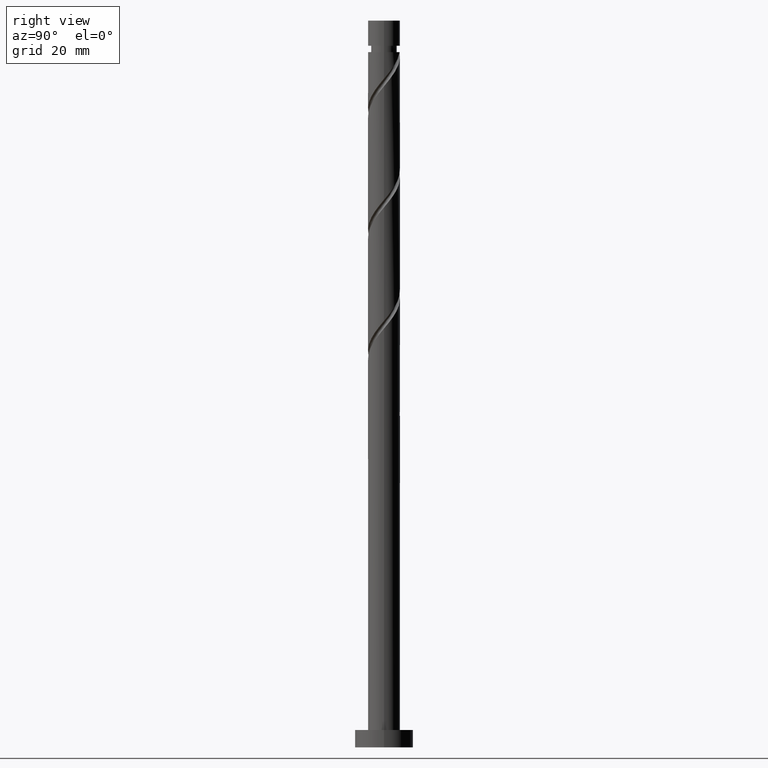
[diagram: clean part render]
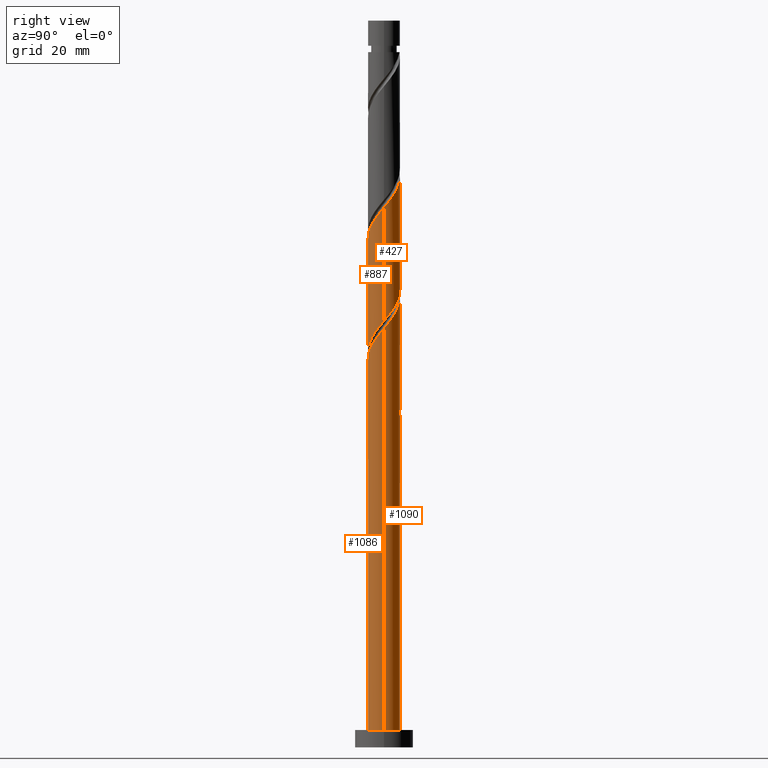
[diagram: same view with one multi-face feature highlighted, each face labeled with its STEP entity id]
A machine part, right view. The highlighted faces form ONE feature: a constant-radius fillet chain: 4 tangent blend faces with common blend radius 2.75 mm. The faces share edges in the B-rep.
Their STEP definitions:
[1] entity #1086 (Cylinder):
#8 = DIRECTION ( 'NONE',  ( -1.000000000000000000, 0.000000000000000000, 0.000000000000000000 ) ) ;
#12 = LINE ( 'NONE', #1559, #48 ) ;
#23 = CARTESIAN_POINT ( 'NONE',  ( -0.7450804091537110985, -2.682734662216110344, 65.92222105348547245 ) ) ;
#46 = CARTESIAN_POINT ( 'NONE',  ( -2.750000000000003997, -3.658317079102196995E-15, 61.61158527868187207 ) ) ;
#48 = VECTOR ( 'NONE', #971, 1000.000000000000000 ) ;
#55 = CARTESIAN_POINT ( 'NONE',  ( -2.750000000000003997, -3.658317079102196995E-15, 61.61158527868187207 ) ) ;
#62 = DIRECTION ( 'NONE',  ( -0.000000000000000000, -0.000000000000000000, -1.000000000000000000 ) ) ;
#66 = CARTESIAN_POINT ( 'NONE',  ( 2.750000000000000000, 3.367778697655220519E-16, 3.000000000000000000 ) ) ;
#73 = CARTESIAN_POINT ( 'NONE',  ( 1.353259906971121307, -2.393989896424906672, 68.52638772015214386 ) ) ;
#112 = CARTESIAN_POINT ( 'NONE',  ( 0.000000000000000000, 0.000000000000000000, 125.0000000000000000 ) ) ;
#143 = ORIENTED_EDGE ( 'NONE', *, *, #507, .F. ) ;
#170 = VERTEX_POINT ( 'NONE', #488 ) ;
#172 = CARTESIAN_POINT ( 'NONE',  ( -2.179654583445650218, -1.732430656858974904, 63.83888772015214386 ) ) ;
#211 = ORIENTED_EDGE ( 'NONE', *, *, #273, .F. ) ;
#230 = AXIS2_PLACEMENT_3D ( 'NONE', #112, #740, #8 ) ;
#255 = VERTEX_POINT ( 'NONE', #727 ) ;
#273 = EDGE_CURVE ( 'NONE', #255, #532, #12, .T. ) ;
#301 = LINE ( 'NONE', #1292, #870 ) ;
#328 = CARTESIAN_POINT ( 'NONE',  ( 2.501962217801642741, -1.141352294733360084, 70.60972105348548666 ) ) ;
#331 = AXIS2_PLACEMENT_3D ( 'NONE', #745, #499, #981 ) ;
#383 = EDGE_CURVE ( 'NONE', #170, #532, #768, .T. ) ;
#438 = CARTESIAN_POINT ( 'NONE',  ( 0.1203970237340162008, -2.781674790595845437, 66.96388772015212965 ) ) ;
#488 = CARTESIAN_POINT ( 'NONE',  ( -2.750000000000000000, 0.000000000000000000, 3.000000000000000000 ) ) ;
#499 = DIRECTION ( 'NONE',  ( 0.000000000000000000, 0.000000000000000000, 1.000000000000000000 ) ) ;
#507 = EDGE_CURVE ( 'NONE', #910, #255, #1085, .T. ) ;
#520 = EDGE_LOOP ( 'NONE', ( #211, #143, #1514, #1330 ) ) ;
#532 = VERTEX_POINT ( 'NONE', #66 ) ;
#563 = CARTESIAN_POINT ( 'NONE',  ( 2.321189773387174693, -1.537624180313009070, 70.08888772015214386 ) ) ;
#668 = CARTESIAN_POINT ( 'NONE',  ( 0.5472430904086422743, -2.695000000000003393, 67.48472105348545824 ) ) ;
#727 = CARTESIAN_POINT ( 'NONE',  ( 2.750000000000003997, 3.268496406738847851E-15, 72.02825194534855768 ) ) ;
#740 = DIRECTION ( 'NONE',  ( -0.000000000000000000, -0.000000000000000000, -1.000000000000000000 ) ) ;
#745 = CARTESIAN_POINT ( 'NONE',  ( 0.000000000000000000, 0.000000000000000000, 3.000000000000000000 ) ) ;
#768 = CIRCLE ( 'NONE', #331, 2.750000000000000000 ) ;
#773 = CARTESIAN_POINT ( 'NONE',  ( -2.393989896424906227, -1.353259906971121307, 63.31805438681881526 ) ) ;
#787 = CARTESIAN_POINT ( 'NONE',  ( -0.3123416927098473517, -2.732204726405979223, 66.44305438681881526 ) ) ;
#806 = CARTESIAN_POINT ( 'NONE',  ( 2.732204726405979223, -0.3123416927098474072, 71.65138772015212965 ) ) ;
#814 = CARTESIAN_POINT ( 'NONE',  ( 2.750000000000004441, -0.1566777779776868662, 71.83874085614127125 ) ) ;
#843 = FACE_OUTER_BOUND ( 'NONE', #520, .T. ) ;
#870 = VECTOR ( 'NONE', #62, 1000.000000000000000 ) ;
#880 = CARTESIAN_POINT ( 'NONE',  ( -2.750000000000003109, -0.2763853991962862411, 61.94588985408970672 ) ) ;
#910 = VERTEX_POINT ( 'NONE', #55 ) ;
#971 = DIRECTION ( 'NONE',  ( -0.000000000000000000, -0.000000000000000000, -1.000000000000000000 ) ) ;
#981 = DIRECTION ( 'NONE',  ( 1.000000000000000000, 0.000000000000000000, 0.000000000000000000 ) ) ;
#994 = CARTESIAN_POINT ( 'NONE',  ( -1.858639381879330088, -2.026810215123074688, 64.35972105348547245 ) ) ;
#1049 = CARTESIAN_POINT ( 'NONE',  ( 2.682734662216110788, -0.7450804091537112095, 71.13055438681881526 ) ) ;
#1063 = CARTESIAN_POINT ( 'NONE',  ( 0.9740891570832681534, -2.608325209404161793, 68.00555438681881526 ) ) ;
#1085 =( BOUNDED_CURVE ( )  B_SPLINE_CURVE ( 2, ( #46, #880, #1366, #1228, #773, #172, #994, #1353, #1233, #23, #787, #438, #668, #1063, #73, #1421, #1544, #563, #328, #1049, #806, #814, #1394 ),
 .UNSPECIFIED., .F., .T. ) 
 B_SPLINE_CURVE_WITH_KNOTS ( ( 3, 2, 2, 2, 2, 2, 2, 2, 2, 2, 2, 3 ),
 ( 0.05453220231385526307, 0.06250000000000000000, 0.07499999999999995559, 0.08750000000000002220, 0.09999999999999997780, 0.1125000000000000444, 0.1250000000000000000, 0.1374999999999999556, 0.1500000000000000222, 0.1624999999999999778, 0.1750000000000000444, 0.1795322023138553047 ),
 .UNSPECIFIED. ) 
 CURVE ( )  GEOMETRIC_REPRESENTATION_ITEM ( )  RATIONAL_B_SPLINE_CURVE ( ( 0.9039174447099398435, 0.9019565955404693636, 0.9090909090909177204, 0.8978984914501337844, 0.9090909090909177204, 0.8978984914501337844, 0.9090909090909177204, 0.8978984914501337844, 0.9090909090909177204, 0.8978984914501337844, 0.9090909090909177204, 0.8978984914501337844, 0.9090909090909177204, 0.8978984914501337844, 0.9090909090909177204, 0.8978984914501337844, 0.9090909090909177204, 0.8978984914501337844, 0.9090909090909177204, 0.8978984914501337844, 0.9090909090909177204, 0.9050328050005820302, 0.9039174447099398435 ) ) 
 REPRESENTATION_ITEM ( '' )  );
#1086 = ADVANCED_FACE ( 'NONE', ( #843 ), #1098, .T. ) ;
#1098 = CYLINDRICAL_SURFACE ( 'NONE', #230, 2.750000000000000000 ) ;
#1228 = CARTESIAN_POINT ( 'NONE',  ( -2.608325209404161349, -0.9740891570832682644, 62.79722105348547956 ) ) ;
#1233 = CARTESIAN_POINT ( 'NONE',  ( -1.141352294733360084, -2.501962217801642741, 65.40138772015215807 ) ) ;
#1292 = CARTESIAN_POINT ( 'NONE',  ( -2.750000000000000000, 0.000000000000000000, 125.0000000000000000 ) ) ;
#1330 = ORIENTED_EDGE ( 'NONE', *, *, #383, .T. ) ;
#1353 = CARTESIAN_POINT ( 'NONE',  ( -1.537624180313008848, -2.321189773387173805, 64.88055438681880105 ) ) ;
#1366 = CARTESIAN_POINT ( 'NONE',  ( -2.695000000000003393, -0.5472430904086422743, 62.27638772015214386 ) ) ;
#1386 = EDGE_CURVE ( 'NONE', #910, #170, #301, .T. ) ;
#1394 = CARTESIAN_POINT ( 'NONE',  ( 2.750000000000003997, 3.268496406738847851E-15, 72.02825194534855768 ) ) ;
#1421 = CARTESIAN_POINT ( 'NONE',  ( 1.732430656858974682, -2.179654583445650218, 69.04722105348547245 ) ) ;
#1514 = ORIENTED_EDGE ( 'NONE', *, *, #1386, .T. ) ;
#1544 = CARTESIAN_POINT ( 'NONE',  ( 2.026810215123074688, -1.858639381879330088, 69.56805438681880105 ) ) ;
#1559 = CARTESIAN_POINT ( 'NONE',  ( 2.750000000000000000, 3.367778697655220519E-16, 125.0000000000000000 ) ) ;
[2] entity #1090 (Cylinder):
#12 = LINE ( 'NONE', #1559, #48 ) ;
#39 = CARTESIAN_POINT ( 'NONE',  ( -0.5472430904086419412, 2.695000000000003393, 77.90138772015214386 ) ) ;
#48 = VECTOR ( 'NONE', #971, 1000.000000000000000 ) ;
#53 = CARTESIAN_POINT ( 'NONE',  ( -0.5472430904086418302, 2.695000000000002949, 57.06805438681880815 ) ) ;
#55 = CARTESIAN_POINT ( 'NONE',  ( -2.750000000000003997, -3.658317079102196995E-15, 61.61158527868187207 ) ) ;
#62 = DIRECTION ( 'NONE',  ( -0.000000000000000000, -0.000000000000000000, -1.000000000000000000 ) ) ;
#66 = CARTESIAN_POINT ( 'NONE',  ( 2.750000000000000000, 3.367778697655220519E-16, 3.000000000000000000 ) ) ;
#86 = CARTESIAN_POINT ( 'NONE',  ( -2.750000000000002220, 0.2763853991962786361, 62.60688558621460231 ) ) ;
#104 = CYLINDRICAL_SURFACE ( 'NONE', #1024, 2.750000000000000000 ) ;
#139 = CARTESIAN_POINT ( 'NONE',  ( -2.501962217801642741, 1.141352294733359862, 81.02638772015211543 ) ) ;
#145 = ORIENTED_EDGE ( 'NONE', *, *, #433, .F. ) ;
#155 = ORIENTED_EDGE ( 'NONE', *, *, #273, .T. ) ;
#156 = CARTESIAN_POINT ( 'NONE',  ( -2.750000000000004441, 0.1566777779776865609, 82.25540752280791423 ) ) ;
#170 = VERTEX_POINT ( 'NONE', #488 ) ;
#246 = ORIENTED_EDGE ( 'NONE', *, *, #811, .F. ) ;
#255 = VERTEX_POINT ( 'NONE', #727 ) ;
#268 = EDGE_LOOP ( 'NONE', ( #145, #155, #925, #483, #280, #313, #360, #246 ) ) ;
#273 = EDGE_CURVE ( 'NONE', #255, #532, #12, .T. ) ;
#280 = ORIENTED_EDGE ( 'NONE', *, *, #838, .F. ) ;
#283 = CARTESIAN_POINT ( 'NONE',  ( 0.5472430904086428294, 2.694999999999999840, 57.06805438681880815 ) ) ;
#290 = CARTESIAN_POINT ( 'NONE',  ( 2.750000000000003109, 0.2763853991962873513, 72.36255652075638523 ) ) ;
#301 = LINE ( 'NONE', #1292, #870 ) ;
#303 = CARTESIAN_POINT ( 'NONE',  ( -2.321189773387174693, 1.537624180313008848, 59.67222105348546535 ) ) ;
#310 = CARTESIAN_POINT ( 'NONE',  ( -1.141352294733357642, 2.501962217801639632, 59.15138772015214386 ) ) ;
#313 = ORIENTED_EDGE ( 'NONE', *, *, #376, .T. ) ;
#318 = CARTESIAN_POINT ( 'NONE',  ( 0.5472430904086428294, 2.694999999999999840, 57.06805438681880815 ) ) ;
#345 = VERTEX_POINT ( 'NONE', #369 ) ;
#360 = ORIENTED_EDGE ( 'NONE', *, *, #1378, .F. ) ;
#369 = CARTESIAN_POINT ( 'NONE',  ( -2.750000000000000888, -3.283489509522074659E-15, 62.94119016162242986 ) ) ;
#373 = DIRECTION ( 'NONE',  ( -1.000000000000000000, 0.000000000000000000, 0.000000000000000000 ) ) ;
#376 = EDGE_CURVE ( 'NONE', #1390, #458, #440, .T. ) ;
#392 = CARTESIAN_POINT ( 'NONE',  ( 2.179654583445651106, 1.732430656858974682, 74.25555438681880105 ) ) ;
#404 = CARTESIAN_POINT ( 'NONE',  ( -1.353259906971121529, 2.393989896424906227, 78.94305438681880105 ) ) ;
#421 = CARTESIAN_POINT ( 'NONE',  ( -2.682734662216110344, 0.7450804091537110985, 81.54722105348545824 ) ) ;
#433 = EDGE_CURVE ( 'NONE', #255, #1460, #447, .T. ) ;
#440 = CIRCLE ( 'NONE', #973, 2.750000000000000000 ) ;
#447 =( BOUNDED_CURVE ( )  B_SPLINE_CURVE ( 2, ( #1011, #290, #1491, #1239, #624, #392, #897, #757, #780, #1135, #1358, #641, #39, #518, #404, #1506, #534, #632, #139, #421, #655, #156, #1002 ),
 .UNSPECIFIED., .F., .T. ) 
 B_SPLINE_CURVE_WITH_KNOTS ( ( 3, 2, 2, 2, 2, 2, 2, 2, 2, 2, 2, 3 ),
 ( 0.1795322023138553047, 0.1875000000000000000, 0.1999999999999999556, 0.2125000000000000222, 0.2249999999999999778, 0.2375000000000000444, 0.2500000000000000000, 0.2624999999999999556, 0.2750000000000000222, 0.2874999999999999778, 0.3000000000000000444, 0.3045322023138553047 ),
 .UNSPECIFIED. ) 
 CURVE ( )  GEOMETRIC_REPRESENTATION_ITEM ( )  RATIONAL_B_SPLINE_CURVE ( ( 0.9039174447099398435, 0.9019565955404693636, 0.9090909090909177204, 0.8978984914501337844, 0.9090909090909177204, 0.8978984914501337844, 0.9090909090909177204, 0.8978984914501337844, 0.9090909090909177204, 0.8978984914501337844, 0.9090909090909177204, 0.8978984914501337844, 0.9090909090909177204, 0.8978984914501337844, 0.9090909090909177204, 0.8978984914501337844, 0.9090909090909177204, 0.8978984914501337844, 0.9090909090909177204, 0.8978984914501337844, 0.9090909090909177204, 0.9050328050005820302, 0.9039174447099398435 ) ) 
 REPRESENTATION_ITEM ( '' )  );
#458 = VERTEX_POINT ( 'NONE', #283 ) ;
#483 = ORIENTED_EDGE ( 'NONE', *, *, #1386, .F. ) ;
#488 = CARTESIAN_POINT ( 'NONE',  ( -2.750000000000000000, 0.000000000000000000, 3.000000000000000000 ) ) ;
#493 = AXIS2_PLACEMENT_3D ( 'NONE', #1439, #1221, #836 ) ;
#495 = FACE_OUTER_BOUND ( 'NONE', #268, .T. ) ;
#500 =( BOUNDED_CURVE ( )  B_SPLINE_CURVE ( 2, ( #673, #86, #1380, #665, #545, #552, #659, #927, #310, #682, #1410, #1524, #318 ),
 .UNSPECIFIED., .F., .T. ) 
 B_SPLINE_CURVE_WITH_KNOTS ( ( 3, 2, 2, 2, 2, 2, 3 ),
 ( 0.9295322023138550271, 0.9375000000000000000, 0.9499999999999999556, 0.9625000000000000222, 0.9749999999999999778, 0.9875000000000000444, 1.000000000000000000 ),
 .UNSPECIFIED. ) 
 CURVE ( )  GEOMETRIC_REPRESENTATION_ITEM ( )  RATIONAL_B_SPLINE_CURVE ( ( 0.9039174447099341814, 0.9019565955404631463, 0.9090909090909118362, 0.8978984914501279002, 0.9090909090909118362, 0.8978984914501279002, 0.9090909090909118362, 0.8978984914501279002, 0.9090909090909118362, 0.8978984914501279002, 0.9090909090909118362, 0.8978984914501279002, 0.9090909090909118362 ) ) 
 REPRESENTATION_ITEM ( '' )  );
#518 = CARTESIAN_POINT ( 'NONE',  ( -0.9740891570832683755, 2.608325209404161349, 78.42222105348551509 ) ) ;
#532 = VERTEX_POINT ( 'NONE', #66 ) ;
#534 = CARTESIAN_POINT ( 'NONE',  ( -2.026810215123074688, 1.858639381879330088, 79.98472105348547245 ) ) ;
#545 = CARTESIAN_POINT ( 'NONE',  ( -2.393989896424902675, 1.353259906971120419, 61.23472105348545824 ) ) ;
#552 = CARTESIAN_POINT ( 'NONE',  ( -2.179654583445647109, 1.732430656858973350, 60.71388772015215096 ) ) ;
#600 = DIRECTION ( 'NONE',  ( -0.000000000000000000, -0.000000000000000000, -1.000000000000000000 ) ) ;
#612 = DIRECTION ( 'NONE',  ( 0.000000000000000000, 1.000000000000000000, -1.766263902812749070E-14 ) ) ;
#624 = CARTESIAN_POINT ( 'NONE',  ( 2.393989896424906672, 1.353259906971121307, 73.73472105348548666 ) ) ;
#632 = CARTESIAN_POINT ( 'NONE',  ( -2.321189773387174693, 1.537624180313008848, 80.50555438681880105 ) ) ;
#641 = CARTESIAN_POINT ( 'NONE',  ( -0.1203970237340159094, 2.781674790595845437, 77.38055438681878684 ) ) ;
#655 = CARTESIAN_POINT ( 'NONE',  ( -2.732204726405979223, 0.3123416927098472406, 82.06805438681878684 ) ) ;
#659 = CARTESIAN_POINT ( 'NONE',  ( -1.858639381879326979, 2.026810215123072023, 60.19305438681882237 ) ) ;
#665 = CARTESIAN_POINT ( 'NONE',  ( -2.608325209404157352, 0.9740891570832675983, 61.75555438681880815 ) ) ;
#673 = CARTESIAN_POINT ( 'NONE',  ( -2.750000000000000888, -3.283489509522074659E-15, 62.94119016162242275 ) ) ;
#682 = CARTESIAN_POINT ( 'NONE',  ( -0.7450804091537093221, 2.682734662216107679, 58.63055438681882237 ) ) ;
#695 = CARTESIAN_POINT ( 'NONE',  ( -2.501962217801642741, 1.141352294733359862, 60.19305438681880105 ) ) ;
#726 = EDGE_CURVE ( 'NONE', #532, #170, #1324, .T. ) ;
#727 = CARTESIAN_POINT ( 'NONE',  ( 2.750000000000003997, 3.268496406738847851E-15, 72.02825194534855768 ) ) ;
#757 = CARTESIAN_POINT ( 'NONE',  ( 1.537624180313009292, 2.321189773387174693, 75.29722105348545824 ) ) ;
#780 = CARTESIAN_POINT ( 'NONE',  ( 1.141352294733360306, 2.501962217801642741, 75.81805438681880105 ) ) ;
#793 = CARTESIAN_POINT ( 'NONE',  ( -0.5472430904086418302, 2.695000000000002949, 57.06805438681880105 ) ) ;
#811 = EDGE_CURVE ( 'NONE', #1460, #345, #1254, .T. ) ;
#813 = CARTESIAN_POINT ( 'NONE',  ( -2.750000000000004441, 0.1566777779776880042, 61.42207418947458564 ) ) ;
#818 = CARTESIAN_POINT ( 'NONE',  ( -2.750000000000003997, -3.658317079102196995E-15, 82.44491861201522909 ) ) ;
#836 = DIRECTION ( 'NONE',  ( 1.000000000000000000, 0.000000000000000000, 0.000000000000000000 ) ) ;
#838 = EDGE_CURVE ( 'NONE', #1390, #910, #1046, .T. ) ;
#855 = DIRECTION ( 'NONE',  ( -1.120541058552571524E-29, -1.892425610156514449E-14, -1.000000000000000000 ) ) ;
#870 = VECTOR ( 'NONE', #62, 1000.000000000000000 ) ;
#893 = VECTOR ( 'NONE', #1383, 1000.000000000000000 ) ;
#897 = CARTESIAN_POINT ( 'NONE',  ( 1.858639381879330088, 2.026810215123074244, 74.77638772015212965 ) ) ;
#910 = VERTEX_POINT ( 'NONE', #55 ) ;
#925 = ORIENTED_EDGE ( 'NONE', *, *, #726, .T. ) ;
#927 = CARTESIAN_POINT ( 'NONE',  ( -1.537624180313005962, 2.321189773387172472, 59.67222105348549377 ) ) ;
#929 = CARTESIAN_POINT ( 'NONE',  ( -1.732430656858974904, 2.179654583445650218, 58.63055438681881526 ) ) ;
#937 = CARTESIAN_POINT ( 'NONE',  ( -1.353259906971121529, 2.393989896424906227, 58.10972105348547956 ) ) ;
#971 = DIRECTION ( 'NONE',  ( -0.000000000000000000, -0.000000000000000000, -1.000000000000000000 ) ) ;
#973 = AXIS2_PLACEMENT_3D ( 'NONE', #1094, #855, #612 ) ;
#1002 = CARTESIAN_POINT ( 'NONE',  ( -2.750000000000003997, -3.658317079102196995E-15, 82.44491861201522909 ) ) ;
#1011 = CARTESIAN_POINT ( 'NONE',  ( 2.750000000000003997, 3.268496406738847851E-15, 72.02825194534855768 ) ) ;
#1024 = AXIS2_PLACEMENT_3D ( 'NONE', #1437, #600, #373 ) ;
#1026 = CARTESIAN_POINT ( 'NONE',  ( -2.750000000000000000, 0.000000000000000000, 125.0000000000000000 ) ) ;
#1046 =( BOUNDED_CURVE ( )  B_SPLINE_CURVE ( 2, ( #793, #1404, #937, #929, #1271, #303, #695, #1519, #1391, #813, #1056 ),
 .UNSPECIFIED., .F., .T. ) 
 B_SPLINE_CURVE_WITH_KNOTS ( ( 3, 2, 2, 2, 2, 3 ),
 ( 0.000000000000000000, 0.01249999999999995559, 0.02500000000000002220, 0.03749999999999997780, 0.05000000000000004441, 0.05453220231385526307 ),
 .UNSPECIFIED. ) 
 CURVE ( )  GEOMETRIC_REPRESENTATION_ITEM ( )  RATIONAL_B_SPLINE_CURVE ( ( 0.9090909090909177204, 0.8978984914501337844, 0.9090909090909177204, 0.8978984914501337844, 0.9090909090909177204, 0.8978984914501337844, 0.9090909090909177204, 0.8978984914501337844, 0.9090909090909177204, 0.9050328050005820302, 0.9039174447099398435 ) ) 
 REPRESENTATION_ITEM ( '' )  );
#1056 = CARTESIAN_POINT ( 'NONE',  ( -2.750000000000003997, -3.658317079102196995E-15, 61.61158527868187207 ) ) ;
#1090 = ADVANCED_FACE ( 'NONE', ( #495 ), #104, .T. ) ;
#1094 = CARTESIAN_POINT ( 'NONE',  ( 0.000000000000000000, 0.000000000000000000, 57.06805438681887210 ) ) ;
#1135 = CARTESIAN_POINT ( 'NONE',  ( 0.7450804091537114315, 2.682734662216110788, 76.33888772015214386 ) ) ;
#1221 = DIRECTION ( 'NONE',  ( 0.000000000000000000, 0.000000000000000000, 1.000000000000000000 ) ) ;
#1239 = CARTESIAN_POINT ( 'NONE',  ( 2.608325209404161793, 0.9740891570832678203, 73.21388772015212965 ) ) ;
#1254 = LINE ( 'NONE', #1026, #893 ) ;
#1271 = CARTESIAN_POINT ( 'NONE',  ( -2.026810215123074688, 1.858639381879330088, 59.15138772015214386 ) ) ;
#1292 = CARTESIAN_POINT ( 'NONE',  ( -2.750000000000000000, 0.000000000000000000, 125.0000000000000000 ) ) ;
#1324 = CIRCLE ( 'NONE', #493, 2.750000000000000000 ) ;
#1358 = CARTESIAN_POINT ( 'NONE',  ( 0.3123416927098478513, 2.732204726405979223, 76.85972105348548666 ) ) ;
#1378 = EDGE_CURVE ( 'NONE', #345, #458, #500, .T. ) ;
#1380 = CARTESIAN_POINT ( 'NONE',  ( -2.694999999999999840, 0.5472430904086424963, 62.27638772015215807 ) ) ;
#1383 = DIRECTION ( 'NONE',  ( -0.000000000000000000, -0.000000000000000000, -1.000000000000000000 ) ) ;
#1386 = EDGE_CURVE ( 'NONE', #910, #170, #301, .T. ) ;
#1390 = VERTEX_POINT ( 'NONE', #53 ) ;
#1391 = CARTESIAN_POINT ( 'NONE',  ( -2.732204726405979223, 0.3123416927098472406, 61.23472105348546535 ) ) ;
#1404 = CARTESIAN_POINT ( 'NONE',  ( -0.9740891570832683755, 2.608325209404161349, 57.58888772015213675 ) ) ;
#1410 = CARTESIAN_POINT ( 'NONE',  ( -0.3123416927098462970, 2.732204726405975670, 58.10972105348547956 ) ) ;
#1437 = CARTESIAN_POINT ( 'NONE',  ( 0.000000000000000000, 0.000000000000000000, 125.0000000000000000 ) ) ;
#1439 = CARTESIAN_POINT ( 'NONE',  ( 0.000000000000000000, 0.000000000000000000, 3.000000000000000000 ) ) ;
#1460 = VERTEX_POINT ( 'NONE', #818 ) ;
#1491 = CARTESIAN_POINT ( 'NONE',  ( 2.695000000000003393, 0.5472430904086420522, 72.69305438681878684 ) ) ;
#1506 = CARTESIAN_POINT ( 'NONE',  ( -1.732430656858974904, 2.179654583445650218, 79.46388772015214386 ) ) ;
#1519 = CARTESIAN_POINT ( 'NONE',  ( -2.682734662216110344, 0.7450804091537110985, 60.71388772015213675 ) ) ;
#1524 = CARTESIAN_POINT ( 'NONE',  ( 0.1203970237340169502, 2.781674790595842772, 57.58888772015215096 ) ) ;
#1559 = CARTESIAN_POINT ( 'NONE',  ( 2.750000000000000000, 3.367778697655220519E-16, 125.0000000000000000 ) ) ;
[3] entity #887 (Cylinder):
#2 = CARTESIAN_POINT ( 'NONE',  ( 2.750000000000000000, 3.367778697655220519E-16, 125.0000000000000000 ) ) ;
#3 = CARTESIAN_POINT ( 'NONE',  ( -2.750000000000000888, -3.283489509522074659E-15, 62.94119016162242275 ) ) ;
#65 = DIRECTION ( 'NONE',  ( -1.000000000000000000, 0.000000000000000000, 0.000000000000000000 ) ) ;
#80 = CARTESIAN_POINT ( 'NONE',  ( 2.501962217801642741, -1.141352294733360084, 91.44305438681881526 ) ) ;
#88 = CARTESIAN_POINT ( 'NONE',  ( 0.000000000000000000, 0.000000000000000000, 125.0000000000000000 ) ) ;
#89 = CARTESIAN_POINT ( 'NONE',  ( 2.750000000000000888, 2.968634351074753058E-15, 73.35785682828908705 ) ) ;
#117 =( BOUNDED_CURVE ( )  B_SPLINE_CURVE ( 2, ( #89, #1165, #185, #931, #1272, #571, #1413, #1537, #456, #1463, #609, #979, #584, #962, #844, #124, #715, #706, #945, #1314, #367, #1570, #3 ),
 .UNSPECIFIED., .F., .T. ) 
 B_SPLINE_CURVE_WITH_KNOTS ( ( 3, 2, 2, 2, 2, 2, 2, 2, 2, 2, 2, 3 ),
 ( 0.8045322023138550271, 0.8125000000000000000, 0.8249999999999999556, 0.8375000000000000222, 0.8499999999999999778, 0.8625000000000000444, 0.8750000000000000000, 0.8874999999999999556, 0.9000000000000000222, 0.9124999999999999778, 0.9250000000000000444, 0.9295322023138550271 ),
 .UNSPECIFIED. ) 
 CURVE ( )  GEOMETRIC_REPRESENTATION_ITEM ( )  RATIONAL_B_SPLINE_CURVE ( ( 0.9039174447099341814, 0.9019565955404631463, 0.9090909090909118362, 0.8978984914501279002, 0.9090909090909118362, 0.8978984914501279002, 0.9090909090909118362, 0.8978984914501279002, 0.9090909090909118362, 0.8978984914501279002, 0.9090909090909118362, 0.8978984914501279002, 0.9090909090909118362, 0.8978984914501279002, 0.9090909090909118362, 0.8978984914501279002, 0.9090909090909118362, 0.8978984914501279002, 0.9090909090909118362, 0.8978984914501279002, 0.9090909090909118362, 0.9050328050005764791, 0.9039174447099341814 ) ) 
 REPRESENTATION_ITEM ( '' )  );
#124 = CARTESIAN_POINT ( 'NONE',  ( -1.732430656858973350, -2.179654583445647109, 65.92222105348548666 ) ) ;
#158 = VECTOR ( 'NONE', #608, 1000.000000000000000 ) ;
#185 = CARTESIAN_POINT ( 'NONE',  ( 2.694999999999999840, -0.5472430904086428294, 72.69305438681880105 ) ) ;
#192 = CARTESIAN_POINT ( 'NONE',  ( 0.9740891570832681534, -2.608325209404161793, 88.83888772015214386 ) ) ;
#221 = LINE ( 'NONE', #2, #158 ) ;
#312 = CARTESIAN_POINT ( 'NONE',  ( -2.179654583445650218, -1.732430656858974904, 84.67222105348547245 ) ) ;
#345 = VERTEX_POINT ( 'NONE', #369 ) ;
#367 = CARTESIAN_POINT ( 'NONE',  ( -2.732204726405975670, -0.3123416927098459084, 63.31805438681881526 ) ) ;
#369 = CARTESIAN_POINT ( 'NONE',  ( -2.750000000000000888, -3.283489509522074659E-15, 62.94119016162242986 ) ) ;
#426 = CARTESIAN_POINT ( 'NONE',  ( 1.353259906971121307, -2.393989896424906672, 89.35972105348545824 ) ) ;
#435 =( BOUNDED_CURVE ( )  B_SPLINE_CURVE ( 2, ( #437, #661, #463, #577, #918, #312, #446, #1428, #1412, #786, #1148, #804, #1279, #192, #426, #684, #1048, #455, #80, #1286, #570, #944, #1164 ),
 .UNSPECIFIED., .F., .T. ) 
 B_SPLINE_CURVE_WITH_KNOTS ( ( 3, 2, 2, 2, 2, 2, 2, 2, 2, 2, 2, 3 ),
 ( 0.3045322023138553047, 0.3125000000000000000, 0.3249999999999999556, 0.3375000000000000222, 0.3499999999999999778, 0.3625000000000000444, 0.3750000000000000000, 0.3874999999999999556, 0.4000000000000000222, 0.4124999999999999778, 0.4250000000000000444, 0.4295322023138556933 ),
 .UNSPECIFIED. ) 
 CURVE ( )  GEOMETRIC_REPRESENTATION_ITEM ( )  RATIONAL_B_SPLINE_CURVE ( ( 0.9039174447099398435, 0.9019565955404693636, 0.9090909090909177204, 0.8978984914501337844, 0.9090909090909177204, 0.8978984914501337844, 0.9090909090909177204, 0.8978984914501337844, 0.9090909090909177204, 0.8978984914501337844, 0.9090909090909177204, 0.8978984914501337844, 0.9090909090909177204, 0.8978984914501337844, 0.9090909090909177204, 0.8978984914501337844, 0.9090909090909177204, 0.8978984914501337844, 0.9090909090909177204, 0.8978984914501337844, 0.9090909090909177204, 0.9050328050005815861, 0.9039174447099396215 ) ) 
 REPRESENTATION_ITEM ( '' )  );
#437 = CARTESIAN_POINT ( 'NONE',  ( -2.750000000000003997, -3.658317079102196995E-15, 82.44491861201522909 ) ) ;
#446 = CARTESIAN_POINT ( 'NONE',  ( -1.858639381879330088, -2.026810215123074688, 85.19305438681880105 ) ) ;
#455 = CARTESIAN_POINT ( 'NONE',  ( 2.321189773387174693, -1.537624180313009070, 90.92222105348548666 ) ) ;
#456 = CARTESIAN_POINT ( 'NONE',  ( 1.141352294733357198, -2.501962217801639632, 69.56805438681881526 ) ) ;
#463 = CARTESIAN_POINT ( 'NONE',  ( -2.695000000000003393, -0.5472430904086422743, 83.10972105348545824 ) ) ;
#570 = CARTESIAN_POINT ( 'NONE',  ( 2.732204726405979223, -0.3123416927098474072, 92.48472105348545824 ) ) ;
#571 = CARTESIAN_POINT ( 'NONE',  ( 2.179654583445646665, -1.732430656858973350, 71.13055438681882947 ) ) ;
#577 = CARTESIAN_POINT ( 'NONE',  ( -2.608325209404161349, -0.9740891570832682644, 83.63055438681880105 ) ) ;
#584 = CARTESIAN_POINT ( 'NONE',  ( -0.5472430904086426073, -2.694999999999999840, 67.48472105348547245 ) ) ;
#608 = DIRECTION ( 'NONE',  ( -0.000000000000000000, -0.000000000000000000, -1.000000000000000000 ) ) ;
#609 = CARTESIAN_POINT ( 'NONE',  ( 0.3123416927098458529, -2.732204726405975226, 68.52638772015214386 ) ) ;
#650 = VERTEX_POINT ( 'NONE', #676 ) ;
#661 = CARTESIAN_POINT ( 'NONE',  ( -2.750000000000003109, -0.2763853991962876844, 82.77922318742304242 ) ) ;
#667 = FACE_OUTER_BOUND ( 'NONE', #1274, .T. ) ;
#676 = CARTESIAN_POINT ( 'NONE',  ( 2.750000000000000888, 2.968634351074752664E-15, 73.35785682828908705 ) ) ;
#684 = CARTESIAN_POINT ( 'NONE',  ( 1.732430656858974682, -2.179654583445650218, 89.88055438681877263 ) ) ;
#703 = EDGE_CURVE ( 'NONE', #650, #345, #117, .T. ) ;
#706 = CARTESIAN_POINT ( 'NONE',  ( -2.321189773387171584, -1.537624180313005740, 64.88055438681881526 ) ) ;
#715 = CARTESIAN_POINT ( 'NONE',  ( -2.026810215123072467, -1.858639381879326535, 65.40138772015215807 ) ) ;
#786 = CARTESIAN_POINT ( 'NONE',  ( -0.7450804091537110985, -2.682734662216110344, 86.75555438681882947 ) ) ;
#804 = CARTESIAN_POINT ( 'NONE',  ( 0.1203970237340162008, -2.781674790595845437, 87.79722105348544403 ) ) ;
#811 = EDGE_CURVE ( 'NONE', #1460, #345, #1254, .T. ) ;
#818 = CARTESIAN_POINT ( 'NONE',  ( -2.750000000000003997, -3.658317079102196995E-15, 82.44491861201522909 ) ) ;
#844 = CARTESIAN_POINT ( 'NONE',  ( -1.353259906971120419, -2.393989896424902675, 66.44305438681881526 ) ) ;
#887 = ADVANCED_FACE ( 'NONE', ( #667 ), #1543, .T. ) ;
#893 = VECTOR ( 'NONE', #1383, 1000.000000000000000 ) ;
#903 = EDGE_CURVE ( 'NONE', #1460, #923, #435, .T. ) ;
#918 = CARTESIAN_POINT ( 'NONE',  ( -2.393989896424906227, -1.353259906971121307, 84.15138772015214386 ) ) ;
#923 = VERTEX_POINT ( 'NONE', #1062 ) ;
#931 = CARTESIAN_POINT ( 'NONE',  ( 2.608325209404156908, -0.9740891570832678203, 72.17222105348547245 ) ) ;
#933 = ORIENTED_EDGE ( 'NONE', *, *, #703, .F. ) ;
#944 = CARTESIAN_POINT ( 'NONE',  ( 2.750000000000006217, -0.1566777779776735158, 92.67207418947461406 ) ) ;
#945 = CARTESIAN_POINT ( 'NONE',  ( -2.501962217801639632, -1.141352294733357198, 64.35972105348547245 ) ) ;
#962 = CARTESIAN_POINT ( 'NONE',  ( -0.9740891570832675983, -2.608325209404156908, 66.96388772015214386 ) ) ;
#979 = CARTESIAN_POINT ( 'NONE',  ( -0.1203970237340173666, -2.781674790595842772, 68.00555438681882947 ) ) ;
#1026 = CARTESIAN_POINT ( 'NONE',  ( -2.750000000000000000, 0.000000000000000000, 125.0000000000000000 ) ) ;
#1048 = CARTESIAN_POINT ( 'NONE',  ( 2.026810215123074688, -1.858639381879330088, 90.40138772015215807 ) ) ;
#1062 = CARTESIAN_POINT ( 'NONE',  ( 2.750000000000003997, 3.268496406738847851E-15, 92.86158527868188628 ) ) ;
#1082 = EDGE_CURVE ( 'NONE', #923, #650, #221, .T. ) ;
#1148 = CARTESIAN_POINT ( 'NONE',  ( -0.3123416927098473517, -2.732204726405979223, 87.27638772015214386 ) ) ;
#1157 = DIRECTION ( 'NONE',  ( -0.000000000000000000, -0.000000000000000000, -1.000000000000000000 ) ) ;
#1164 = CARTESIAN_POINT ( 'NONE',  ( 2.750000000000003997, 3.268496406738847851E-15, 92.86158527868188628 ) ) ;
#1165 = CARTESIAN_POINT ( 'NONE',  ( 2.750000000000002220, -0.2763853991962789691, 73.02355225288125951 ) ) ;
#1254 = LINE ( 'NONE', #1026, #893 ) ;
#1272 = CARTESIAN_POINT ( 'NONE',  ( 2.393989896424902675, -1.353259906971120641, 71.65138772015214386 ) ) ;
#1274 = EDGE_LOOP ( 'NONE', ( #1415, #1278, #1423, #933 ) ) ;
#1278 = ORIENTED_EDGE ( 'NONE', *, *, #903, .F. ) ;
#1279 = CARTESIAN_POINT ( 'NONE',  ( 0.5472430904086422743, -2.695000000000003393, 88.31805438681880105 ) ) ;
#1286 = CARTESIAN_POINT ( 'NONE',  ( 2.682734662216110788, -0.7450804091537112095, 91.96388772015212965 ) ) ;
#1314 = CARTESIAN_POINT ( 'NONE',  ( -2.682734662216107679, -0.7450804091537093221, 63.83888772015215807 ) ) ;
#1370 = AXIS2_PLACEMENT_3D ( 'NONE', #88, #1157, #65 ) ;
#1383 = DIRECTION ( 'NONE',  ( -0.000000000000000000, -0.000000000000000000, -1.000000000000000000 ) ) ;
#1412 = CARTESIAN_POINT ( 'NONE',  ( -1.141352294733360084, -2.501962217801642741, 86.23472105348548666 ) ) ;
#1413 = CARTESIAN_POINT ( 'NONE',  ( 1.858639381879326535, -2.026810215123072467, 70.60972105348548666 ) ) ;
#1415 = ORIENTED_EDGE ( 'NONE', *, *, #1082, .F. ) ;
#1423 = ORIENTED_EDGE ( 'NONE', *, *, #811, .T. ) ;
#1428 = CARTESIAN_POINT ( 'NONE',  ( -1.537624180313008848, -2.321189773387173805, 85.71388772015215807 ) ) ;
#1460 = VERTEX_POINT ( 'NONE', #818 ) ;
#1463 = CARTESIAN_POINT ( 'NONE',  ( 0.7450804091537088780, -2.682734662216107679, 69.04722105348548666 ) ) ;
#1537 = CARTESIAN_POINT ( 'NONE',  ( 1.537624180313005740, -2.321189773387172472, 70.08888772015214386 ) ) ;
#1543 = CYLINDRICAL_SURFACE ( 'NONE', #1370, 2.750000000000000000 ) ;
#1570 = CARTESIAN_POINT ( 'NONE',  ( -2.750000000000000000, -0.1566777779776951651, 63.13070125082968076 ) ) ;
[4] entity #427 (Cylinder):
#2 = CARTESIAN_POINT ( 'NONE',  ( 2.750000000000000000, 3.367778697655220519E-16, 125.0000000000000000 ) ) ;
#38 = CARTESIAN_POINT ( 'NONE',  ( -1.732430656858974904, 2.179654583445650218, 100.2972210534854582 ) ) ;
#70 = CARTESIAN_POINT ( 'NONE',  ( 2.682734662216107679, 0.7450804091537088780, 74.25555438681880105 ) ) ;
#77 = CARTESIAN_POINT ( 'NONE',  ( 0.1203970237340169502, 2.781674790595842772, 78.42222105348550087 ) ) ;
#138 = CARTESIAN_POINT ( 'NONE',  ( 2.179654583445651106, 1.732430656858974682, 95.08888772015217228 ) ) ;
#144 = CARTESIAN_POINT ( 'NONE',  ( 0.7450804091537114315, 2.682734662216110788, 97.17222105348545824 ) ) ;
#158 = VECTOR ( 'NONE', #608, 1000.000000000000000 ) ;
#171 = CARTESIAN_POINT ( 'NONE',  ( -2.026810215123074688, 1.858639381879330088, 100.8180543868188010 ) ) ;
#175 = CARTESIAN_POINT ( 'NONE',  ( -1.141352294733357642, 2.501962217801639632, 79.98472105348547245 ) ) ;
#193 = CARTESIAN_POINT ( 'NONE',  ( -2.750000000000000000, 0.000000000000000000, 125.0000000000000000 ) ) ;
#197 = CARTESIAN_POINT ( 'NONE',  ( -0.3123416927098462970, 2.732204726405975670, 78.94305438681882947 ) ) ;
#204 = CARTESIAN_POINT ( 'NONE',  ( 2.321189773387172472, 1.537624180313005740, 75.29722105348545824 ) ) ;
#206 =( BOUNDED_CURVE ( )  B_SPLINE_CURVE ( 2, ( #419, #272, #1134, #756, #541, #138, #1490, #1232, #516, #144, #403, #1140, #297, #1001, #763, #38, #171, #637, #524, #533, #410, #779, #902 ),
 .UNSPECIFIED., .F., .T. ) 
 B_SPLINE_CURVE_WITH_KNOTS ( ( 3, 2, 2, 2, 2, 2, 2, 2, 2, 2, 2, 3 ),
 ( 0.4295322023138556933, 0.4375000000000000000, 0.4499999999999999556, 0.4625000000000000222, 0.4749999999999999778, 0.4875000000000000444, 0.5000000000000000000, 0.5124999999999999556, 0.5250000000000000222, 0.5374999999999999778, 0.5500000000000000444, 0.5545322023138551382 ),
 .UNSPECIFIED. ) 
 CURVE ( )  GEOMETRIC_REPRESENTATION_ITEM ( )  RATIONAL_B_SPLINE_CURVE ( ( 0.9039174447099396215, 0.9019565955404698077, 0.9090909090909177204, 0.8978984914501337844, 0.9090909090909177204, 0.8978984914501337844, 0.9090909090909177204, 0.8978984914501337844, 0.9090909090909177204, 0.8978984914501337844, 0.9090909090909177204, 0.8978984914501337844, 0.9090909090909177204, 0.8978984914501337844, 0.9090909090909177204, 0.8978984914501337844, 0.9090909090909177204, 0.8978984914501337844, 0.9090909090909177204, 0.8978984914501337844, 0.9090909090909177204, 0.9050328050005822522, 0.9039174447099400656 ) ) 
 REPRESENTATION_ITEM ( '' )  );
#221 = LINE ( 'NONE', #2, #158 ) ;
#272 = CARTESIAN_POINT ( 'NONE',  ( 2.750000000000000000, 0.2763853991963005630, 93.19588985408971382 ) ) ;
#294 = CARTESIAN_POINT ( 'NONE',  ( 2.026810215123072467, 1.858639381879326535, 75.81805438681881526 ) ) ;
#297 = CARTESIAN_POINT ( 'NONE',  ( -0.5472430904086419412, 2.695000000000003393, 98.73472105348547245 ) ) ;
#403 = CARTESIAN_POINT ( 'NONE',  ( 0.3123416927098478513, 2.732204726405979223, 97.69305438681878684 ) ) ;
#410 = CARTESIAN_POINT ( 'NONE',  ( -2.732204726405979223, 0.3123416927098472406, 102.9013877201521439 ) ) ;
#412 = DIRECTION ( 'NONE',  ( -1.000000000000000000, 0.000000000000000000, 0.000000000000000000 ) ) ;
#417 = CARTESIAN_POINT ( 'NONE',  ( -2.750000000000000888, 0.2763853991962822998, 83.44021891954785985 ) ) ;
#419 = CARTESIAN_POINT ( 'NONE',  ( 2.750000000000003997, 3.268496406738847851E-15, 92.86158527868188628 ) ) ;
#427 = ADVANCED_FACE ( 'NONE', ( #1027 ), #1476, .T. ) ;
#453 = CARTESIAN_POINT ( 'NONE',  ( -1.537624180313005962, 2.321189773387172472, 80.50555438681882947 ) ) ;
#489 = ORIENTED_EDGE ( 'NONE', *, *, #638, .F. ) ;
#516 = CARTESIAN_POINT ( 'NONE',  ( 1.141352294733360306, 2.501962217801642741, 96.65138772015214386 ) ) ;
#524 = CARTESIAN_POINT ( 'NONE',  ( -2.501962217801642741, 1.141352294733359862, 101.8597210534854725 ) ) ;
#533 = CARTESIAN_POINT ( 'NONE',  ( -2.682734662216110344, 0.7450804091537110985, 102.3805543868188437 ) ) ;
#541 = CARTESIAN_POINT ( 'NONE',  ( 2.393989896424906672, 1.353259906971121307, 94.56805438681881526 ) ) ;
#608 = DIRECTION ( 'NONE',  ( -0.000000000000000000, -0.000000000000000000, -1.000000000000000000 ) ) ;
#637 = CARTESIAN_POINT ( 'NONE',  ( -2.321189773387174693, 1.537624180313008848, 101.3388877201521296 ) ) ;
#638 = EDGE_CURVE ( 'NONE', #1438, #1265, #1529, .T. ) ;
#648 = CARTESIAN_POINT ( 'NONE',  ( 0.000000000000000000, 0.000000000000000000, 125.0000000000000000 ) ) ;
#650 = VERTEX_POINT ( 'NONE', #676 ) ;
#676 = CARTESIAN_POINT ( 'NONE',  ( 2.750000000000000888, 2.968634351074752664E-15, 73.35785682828908705 ) ) ;
#690 = ORIENTED_EDGE ( 'NONE', *, *, #1441, .F. ) ;
#756 = CARTESIAN_POINT ( 'NONE',  ( 2.608325209404161793, 0.9740891570832678203, 94.04722105348548666 ) ) ;
#761 = CARTESIAN_POINT ( 'NONE',  ( -2.750000000000000888, -3.283489509522074659E-15, 83.77452349495574424 ) ) ;
#763 = CARTESIAN_POINT ( 'NONE',  ( -1.353259906971121529, 2.393989896424906227, 99.77638772015215807 ) ) ;
#779 = CARTESIAN_POINT ( 'NONE',  ( -2.750000000000003109, 0.1566777779776922785, 103.0887408561412286 ) ) ;
#783 = CARTESIAN_POINT ( 'NONE',  ( 2.749999999999999112, 0.1566777779776948876, 73.54736791749635927 ) ) ;
#791 = CARTESIAN_POINT ( 'NONE',  ( 2.750000000000000888, 2.968634351074753058E-15, 73.35785682828908705 ) ) ;
#799 = EDGE_CURVE ( 'NONE', #923, #1438, #206, .T. ) ;
#801 = CARTESIAN_POINT ( 'NONE',  ( -2.179654583445647109, 1.732430656858973350, 81.54722105348547245 ) ) ;
#823 = AXIS2_PLACEMENT_3D ( 'NONE', #648, #1129, #412 ) ;
#900 = CARTESIAN_POINT ( 'NONE',  ( -2.608325209404157352, 0.9740891570832675983, 82.58888772015214386 ) ) ;
#902 = CARTESIAN_POINT ( 'NONE',  ( -2.750000000000003109, 1.589268895019806216E-15, 103.2782519453485293 ) ) ;
#907 = CARTESIAN_POINT ( 'NONE',  ( 0.9740891570832678203, 2.608325209404156908, 77.38055438681882947 ) ) ;
#922 = EDGE_LOOP ( 'NONE', ( #930, #1540, #690, #489 ) ) ;
#923 = VERTEX_POINT ( 'NONE', #1062 ) ;
#930 = ORIENTED_EDGE ( 'NONE', *, *, #799, .F. ) ;
#947 = VECTOR ( 'NONE', #1182, 1000.000000000000000 ) ;
#1001 = CARTESIAN_POINT ( 'NONE',  ( -0.9740891570832683755, 2.608325209404161349, 99.25555438681881526 ) ) ;
#1022 = CARTESIAN_POINT ( 'NONE',  ( -2.750000000000003109, 1.589268895019806216E-15, 103.2782519453485293 ) ) ;
#1027 = FACE_OUTER_BOUND ( 'NONE', #922, .T. ) ;
#1030 = CARTESIAN_POINT ( 'NONE',  ( 0.5472430904086429404, 2.694999999999999840, 77.90138772015214386 ) ) ;
#1039 = CARTESIAN_POINT ( 'NONE',  ( -0.7450804091537093221, 2.682734662216107679, 79.46388772015218649 ) ) ;
#1062 = CARTESIAN_POINT ( 'NONE',  ( 2.750000000000003997, 3.268496406738847851E-15, 92.86158527868188628 ) ) ;
#1082 = EDGE_CURVE ( 'NONE', #923, #650, #221, .T. ) ;
#1129 = DIRECTION ( 'NONE',  ( -0.000000000000000000, -0.000000000000000000, -1.000000000000000000 ) ) ;
#1134 = CARTESIAN_POINT ( 'NONE',  ( 2.695000000000003393, 0.5472430904086420522, 93.52638772015214386 ) ) ;
#1140 = CARTESIAN_POINT ( 'NONE',  ( -0.1203970237340159094, 2.781674790595845437, 98.21388772015212965 ) ) ;
#1145 = CARTESIAN_POINT ( 'NONE',  ( -2.694999999999999840, 0.5472430904086424963, 83.10972105348545824 ) ) ;
#1162 = CARTESIAN_POINT ( 'NONE',  ( -2.393989896424902675, 1.353259906971120419, 82.06805438681880105 ) ) ;
#1169 = CARTESIAN_POINT ( 'NONE',  ( -2.750000000000000888, -3.283489509522074659E-15, 83.77452349495574424 ) ) ;
#1182 = DIRECTION ( 'NONE',  ( -0.000000000000000000, -0.000000000000000000, -1.000000000000000000 ) ) ;
#1232 = CARTESIAN_POINT ( 'NONE',  ( 1.537624180313009292, 2.321189773387174693, 96.13055438681878684 ) ) ;
#1265 = VERTEX_POINT ( 'NONE', #761 ) ;
#1267 = CARTESIAN_POINT ( 'NONE',  ( 2.501962217801639632, 1.141352294733356754, 74.77638772015214386 ) ) ;
#1388 = CARTESIAN_POINT ( 'NONE',  ( 1.353259906971120863, 2.393989896424902675, 76.85972105348547245 ) ) ;
#1417 = CARTESIAN_POINT ( 'NONE',  ( -1.858639381879326979, 2.026810215123072023, 81.02638772015214386 ) ) ;
#1418 =( BOUNDED_CURVE ( )  B_SPLINE_CURVE ( 2, ( #1169, #417, #1145, #900, #1162, #801, #1417, #453, #175, #1039, #197, #77, #1030, #907, #1388, #1517, #294, #204, #1267, #70, #1509, #783, #791 ),
 .UNSPECIFIED., .F., .T. ) 
 B_SPLINE_CURVE_WITH_KNOTS ( ( 3, 2, 2, 2, 2, 2, 2, 2, 2, 2, 2, 3 ),
 ( 0.6795322023138551382, 0.6875000000000000000, 0.6999999999999999556, 0.7125000000000000222, 0.7249999999999999778, 0.7375000000000000444, 0.7500000000000000000, 0.7624999999999999556, 0.7750000000000000222, 0.7874999999999999778, 0.8000000000000000444, 0.8045322023138550271 ),
 .UNSPECIFIED. ) 
 CURVE ( )  GEOMETRIC_REPRESENTATION_ITEM ( )  RATIONAL_B_SPLINE_CURVE ( ( 0.9039174447099340703, 0.9019565955404633684, 0.9090909090909118362, 0.8978984914501279002, 0.9090909090909118362, 0.8978984914501279002, 0.9090909090909118362, 0.8978984914501279002, 0.9090909090909118362, 0.8978984914501279002, 0.9090909090909118362, 0.8978984914501279002, 0.9090909090909118362, 0.8978984914501279002, 0.9090909090909118362, 0.8978984914501279002, 0.9090909090909118362, 0.8978984914501279002, 0.9090909090909118362, 0.8978984914501279002, 0.9090909090909118362, 0.9050328050005764791, 0.9039174447099341814 ) ) 
 REPRESENTATION_ITEM ( '' )  );
#1438 = VERTEX_POINT ( 'NONE', #1022 ) ;
#1441 = EDGE_CURVE ( 'NONE', #1265, #650, #1418, .T. ) ;
#1476 = CYLINDRICAL_SURFACE ( 'NONE', #823, 2.750000000000000000 ) ;
#1490 = CARTESIAN_POINT ( 'NONE',  ( 1.858639381879330088, 2.026810215123074244, 95.60972105348547245 ) ) ;
#1509 = CARTESIAN_POINT ( 'NONE',  ( 2.732204726405975226, 0.3123416927098457418, 73.73472105348547245 ) ) ;
#1517 = CARTESIAN_POINT ( 'NONE',  ( 1.732430656858973794, 2.179654583445646665, 76.33888772015215807 ) ) ;
#1529 = LINE ( 'NONE', #193, #947 ) ;
#1540 = ORIENTED_EDGE ( 'NONE', *, *, #1082, .T. ) ;